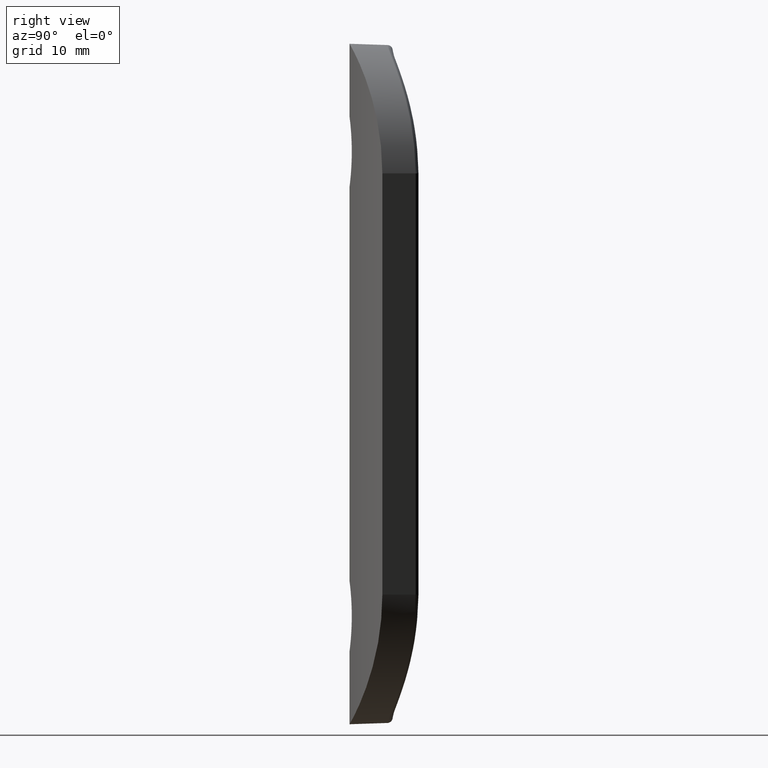
[diagram: clean part render]
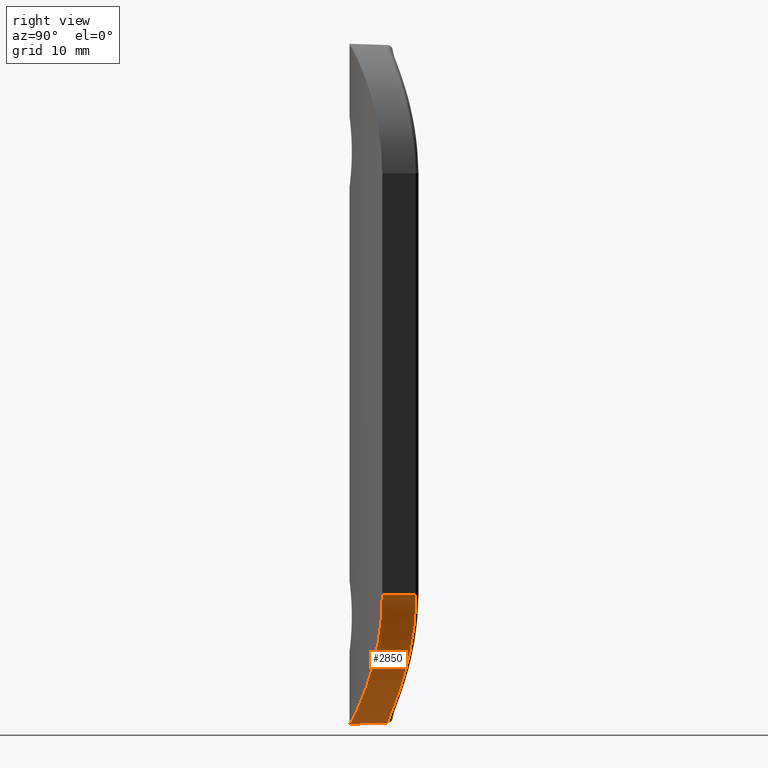
[diagram: same view with one face highlighted and labeled with its STEP entity id]
A machine part, right view. The second image highlights one B-rep face of the part: STEP entity #2850.
In plain terms, the highlighted cylindrical surface (partial cylindrical patch) has radius 12 mm, axis along (-0.4762, 0.8793, 0).
Its self-contained STEP definition (entity closure, byte-faithful):
#29 = CARTESIAN_POINT ( 'NONE',  ( 8.070018011858289600, -2.675033751623812500, -28.68965972254910900 ) ) ;
#440 = B_SPLINE_CURVE_WITH_KNOTS ( 'NONE', 3,
 ( #9769, #14203, #13107, #4400, #14156, #7628, #12054, #3225, #8713, #9815, #2249, #29, #4357, #2289, #5740, #3444, #6664, #12278, #9949, #10993, #13362, #9904, #11174, #11088 ),
 .UNSPECIFIED., .F., .F.,
 ( 4, 2, 2, 2, 2, 2, 2, 2, 2, 2, 2, 4 ),
 ( 6.655147492005019600E-020, 0.002404719628250255700, 0.003607079442375383300, 0.004809439256500511400, 0.007214158884750770900, 0.008416518698875899400, 0.009618878513001031400, 0.01082123832712616000, 0.01202359814125129000, 0.01442831776950155100, 0.01683303739775180900, 0.01923775702600207000 ),
 .UNSPECIFIED. ) ;
#670 = CARTESIAN_POINT ( 'NONE',  ( 5.421014655413937800, 0.2527736371594099800, -29.41883732215443100 ) ) ;
#1059 = VERTEX_POINT ( 'NONE', #3682 ) ;
#1154 = CARTESIAN_POINT ( 'NONE',  ( -3.713751643437152700E-015, -1.637537072060927900, -31.46041783962496300 ) ) ;
#1475 = VECTOR ( 'NONE', #8205, 1000.000000000000000 ) ;
#1476 = CARTESIAN_POINT ( 'NONE',  ( -4.157292955271917600E-015, -0.4665273873807616000, -31.38144928148674900 ) ) ;
#1755 = ORIENTED_EDGE ( 'NONE', *, *, #10028, .F. ) ;
#1831 = CARTESIAN_POINT ( 'NONE',  ( 10.27070178187117100, 2.092293134099664900, -20.96398982182408900 ) ) ;
#1876 = CARTESIAN_POINT ( 'NONE',  ( 7.963226863790067600, 1.066953135367974200, -26.94898104757637100 ) ) ;
#1926 = CARTESIAN_POINT ( 'NONE',  ( 10.33058993646413600, 2.123341184457221900, -19.50000000000000400 ) ) ;
#1980 = CARTESIAN_POINT ( 'NONE',  ( 8.372688073278615300, 1.227509043111302700, -26.36127210913014100 ) ) ;
#2249 = CARTESIAN_POINT ( 'NONE',  ( 7.461081916255317900, -2.872280406970613600, -29.18403922431020800 ) ) ;
#2289 = CARTESIAN_POINT ( 'NONE',  ( 8.904526323337204700, -2.376129620349473300, -27.87499940745014000 ) ) ;
#2426 = ORIENTED_EDGE ( 'NONE', *, *, #3718, .F. ) ;
#2491 = CARTESIAN_POINT ( 'NONE',  ( 11.99999999999999800, -0.9594223751432641200, -19.50000000000000400 ) ) ;
#2850 = ADVANCED_FACE ( 'NONE', ( #13295 ), #7698, .T. ) ;
#3081 = CARTESIAN_POINT ( 'NONE',  ( 9.842163442257746200, 1.879487073314582100, -23.09594054719444100 ) ) ;
#3225 = CARTESIAN_POINT ( 'NONE',  ( 5.452304225355308500, -3.414662459839250500, -30.40220668051475900 ) ) ;
#3269 = ORIENTED_EDGE ( 'NONE', *, *, #10872, .F. ) ;
#3444 = CARTESIAN_POINT ( 'NONE',  ( 9.647921971715934600, -2.081454063450988400, -26.97324947382548300 ) ) ;
#3596 = DIRECTION ( 'NONE',  ( -0.8793421577437800000, -0.4761904761904771100, 0.0000000000000000000 ) ) ;
#3682 = CARTESIAN_POINT ( 'NONE',  ( -4.060108814589744000E-015, -4.000000000000000000, -31.50000000000000000 ) ) ;
#3718 = EDGE_CURVE ( 'NONE', #8643, #1059, #4087, .T. ) ;
#3736 = CARTESIAN_POINT ( 'NONE',  ( 1.447894107074638900, -6.673708089428988200, -19.50000000000000400 ) ) ;
#4087 =( BOUNDED_CURVE ( )  B_SPLINE_CURVE ( 3, ( #7859, #1154, #8811, #12187 ),
 .UNSPECIFIED., .F., .F. ) 
 B_SPLINE_CURVE_WITH_KNOTS ( ( 4, 4 ),
 ( 1.430115581471689500, 1.570796326794895900 ),
 .UNSPECIFIED. ) 
 CURVE ( )  GEOMETRIC_REPRESENTATION_ITEM ( )  RATIONAL_B_SPLINE_CURVE ( ( 1.000000000000000000, 0.9983514238904798200, 0.9983514238904798200, 1.000000000000000000 ) ) 
 REPRESENTATION_ITEM ( '' )  );
#4357 = CARTESIAN_POINT ( 'NONE',  ( 8.358390092009223300, -2.575234846123539700, -28.42775120624607900 ) ) ;
#4400 = CARTESIAN_POINT ( 'NONE',  ( 2.792776424909799700, -3.847888878390024500, -31.23648069177836100 ) ) ;
#4845 = VERTEX_POINT ( 'NONE', #2491 ) ;
#4880 = CARTESIAN_POINT ( 'NONE',  ( 11.99999999999999800, -0.9594223751432641200, -19.50000000000000400 ) ) ;
#5089 = CARTESIAN_POINT ( 'NONE',  ( 9.737482093167638900, 1.828916653511876600, -23.44699526699285700 ) ) ;
#5199 = CARTESIAN_POINT ( 'NONE',  ( 6.539470599577549900, 0.5690297762735057100, -28.53832671473508900 ) ) ;
#5740 = CARTESIAN_POINT ( 'NONE',  ( 9.162288598564817500, -2.276817699967490900, -27.58415630336390800 ) ) ;
#6141 = CARTESIAN_POINT ( 'NONE',  ( 10.33058993646413300, 2.123341184457222800, -20.23771835066771600 ) ) ;
#6297 = CARTESIAN_POINT ( 'NONE',  ( 10.01987600549706800, 1.966499582659339200, -22.39180398878292200 ) ) ;
#6623 = B_SPLINE_CURVE_WITH_KNOTS ( 'NONE', 3,
 ( #8352, #8538, #7254, #12733, #11734, #12834, #13773, #12686, #670, #5199, #11636, #7445, #1876, #1980, #8495, #8400, #12786, #5089, #3081, #6297, #10719, #1831, #6141, #1926 ),
 .UNSPECIFIED., .F., .F.,
 ( 4, 2, 2, 2, 2, 2, 2, 2, 2, 2, 2, 4 ),
 ( 1.157480417669861100E-020, 0.001104049188438081100, 0.002208098376876162100, 0.004416196753752323400, 0.006624295130628486000, 0.008832393507504646800, 0.009936442695942729000, 0.01104049188438081300, 0.01324859026125699100, 0.01435263944969508200, 0.01545668863813317300, 0.01766478701500936300 ),
 .UNSPECIFIED. ) ;
#6664 = CARTESIAN_POINT ( 'NONE',  ( 9.876756645886438000, -1.984972568899343100, -26.65162954762824300 ) ) ;
#7254 = CARTESIAN_POINT ( 'NONE',  ( 0.7290367407144192600, -0.4469597635590893400, -31.27580663925251500 ) ) ;
#7336 = CARTESIAN_POINT ( 'NONE',  ( 10.33058993646413600, 2.123341184457221900, -19.50000000000000400 ) ) ;
#7445 = CARTESIAN_POINT ( 'NONE',  ( 7.742899393933320200, 0.9839081457971509100, -27.23461134556579200 ) ) ;
#7538 = EDGE_LOOP ( 'NONE', ( #2426, #11798, #1755, #3269 ) ) ;
#7628 = CARTESIAN_POINT ( 'NONE',  ( 3.957172420178758400, -3.690432382476725800, -30.94504960027833800 ) ) ;
#7698 = CYLINDRICAL_SURFACE ( 'NONE', #13382, 12.00000000000000000 ) ;
#7859 = CARTESIAN_POINT ( 'NONE',  ( -4.157292955271917600E-015, -0.4665273873807616000, -31.38144928148674900 ) ) ;
#8018 = DIRECTION ( 'NONE',  ( -0.4761904761904769400, 0.8793421577437800000, 0.0000000000000000000 ) ) ;
#8205 = DIRECTION ( 'NONE',  ( -0.4761904761904769400, 0.8793421577437800000, 0.0000000000000000000 ) ) ;
#8271 = VERTEX_POINT ( 'NONE', #7336 ) ;
#8352 = CARTESIAN_POINT ( 'NONE',  ( -4.157292955271917600E-015, -0.4665273873807616000, -31.38144928148674900 ) ) ;
#8400 = CARTESIAN_POINT ( 'NONE',  ( 9.087674179100078600, 1.527117681080103500, -25.12826339384416500 ) ) ;
#8495 = CARTESIAN_POINT ( 'NONE',  ( 8.562218673332060000, 1.305111158414553200, -26.05909755608868700 ) ) ;
#8538 = CARTESIAN_POINT ( 'NONE',  ( 0.3660390188082669500, -0.4610958318816602600, -31.33550048143714800 ) ) ;
#8643 = VERTEX_POINT ( 'NONE', #1476 ) ;
#8713 = CARTESIAN_POINT ( 'NONE',  ( 6.152177999487236100, -3.247060572112986600, -30.05227158300981600 ) ) ;
#8811 = CARTESIAN_POINT ( 'NONE',  ( -3.266892526569563900E-015, -2.817306215491949900, -31.50000000000000000 ) ) ;
#9769 = CARTESIAN_POINT ( 'NONE',  ( -4.060108814589744000E-015, -4.000000000000000000, -31.50000000000000000 ) ) ;
#9815 = CARTESIAN_POINT ( 'NONE',  ( 7.140214577833963200, -2.969699045932935500, -29.41628354052732400 ) ) ;
#9904 = CARTESIAN_POINT ( 'NONE',  ( 11.92832071221263000, -0.9986732132548439300, -21.11307492578390900 ) ) ;
#9949 = CARTESIAN_POINT ( 'NONE',  ( 10.86122045950696200, -1.541448732340300100, -24.94936520890068700 ) ) ;
#10028 = EDGE_CURVE ( 'NONE', #4845, #8271, #12091, .T. ) ;
#10719 = CARTESIAN_POINT ( 'NONE',  ( 10.09358122146650800, 2.003259200978648700, -22.03692327181783400 ) ) ;
#10872 = EDGE_CURVE ( 'NONE', #1059, #4845, #440, .T. ) ;
#10993 = CARTESIAN_POINT ( 'NONE',  ( 11.42733513922664000, -1.262315373341880200, -23.47153338559776600 ) ) ;
#11088 = CARTESIAN_POINT ( 'NONE',  ( 11.99999999999999800, -0.9594223751432641200, -19.50000000000000400 ) ) ;
#11174 = CARTESIAN_POINT ( 'NONE',  ( 12.00000000000000000, -0.9594223751432625600, -20.31273156227684500 ) ) ;
#11636 = CARTESIAN_POINT ( 'NONE',  ( 7.049342267791694800, 0.7354834295311211100, -28.04769904794204300 ) ) ;
#11734 = CARTESIAN_POINT ( 'NONE',  ( 1.806454664494640200, -0.3713428404764564900, -31.03768261639540100 ) ) ;
#11798 = ORIENTED_EDGE ( 'NONE', *, *, #12330, .T. ) ;
#12054 = CARTESIAN_POINT ( 'NONE',  ( 4.340547476338974400, -3.626235214990997300, -30.82211531279922300 ) ) ;
#12091 = LINE ( 'NONE', #4880, #1475 ) ;
#12187 = CARTESIAN_POINT ( 'NONE',  ( -4.060108814589744000E-015, -4.000000000000000000, -31.50000000000000000 ) ) ;
#12278 = CARTESIAN_POINT ( 'NONE',  ( 10.51128959650588800, -1.707769216339998700, -25.65241647618529400 ) ) ;
#12330 = EDGE_CURVE ( 'NONE', #8643, #8271, #6623, .T. ) ;
#12686 = CARTESIAN_POINT ( 'NONE',  ( 4.806137074679139900, 0.1020900379496520700, -29.81053893712088900 ) ) ;
#12733 = CARTESIAN_POINT ( 'NONE',  ( 1.448652029141986700, -0.4021667335320290900, -31.12710802299232400 ) ) ;
#12786 = CARTESIAN_POINT ( 'NONE',  ( 9.380846267159295600, 1.660741133774005500, -24.47549258454393600 ) ) ;
#12834 = CARTESIAN_POINT ( 'NONE',  ( 2.855490079396816800, -0.2571016089213973300, -30.72652424236561000 ) ) ;
#13107 = CARTESIAN_POINT ( 'NONE',  ( 1.611978675888151400, -3.960820225964582600, -31.43672536682948900 ) ) ;
#13295 = FACE_OUTER_BOUND ( 'NONE', #7538, .T. ) ;
#13362 = CARTESIAN_POINT ( 'NONE',  ( 11.64367335420694400, -1.149290777624467600, -22.68971465014288900 ) ) ;
#13382 = AXIS2_PLACEMENT_3D ( 'NONE', #3736, #8018, #3596 ) ;
#13773 = CARTESIAN_POINT ( 'NONE',  ( 3.525587456594092600, -0.1519860559817207400, -30.46195507858155700 ) ) ;
#14156 = CARTESIAN_POINT ( 'NONE',  ( 3.183169611241726500, -3.801205350457337800, -31.15209547169129000 ) ) ;
#14203 = CARTESIAN_POINT ( 'NONE',  ( 0.8120060809979331400, -4.000000000000000000, -31.50000000000000000 ) ) ;